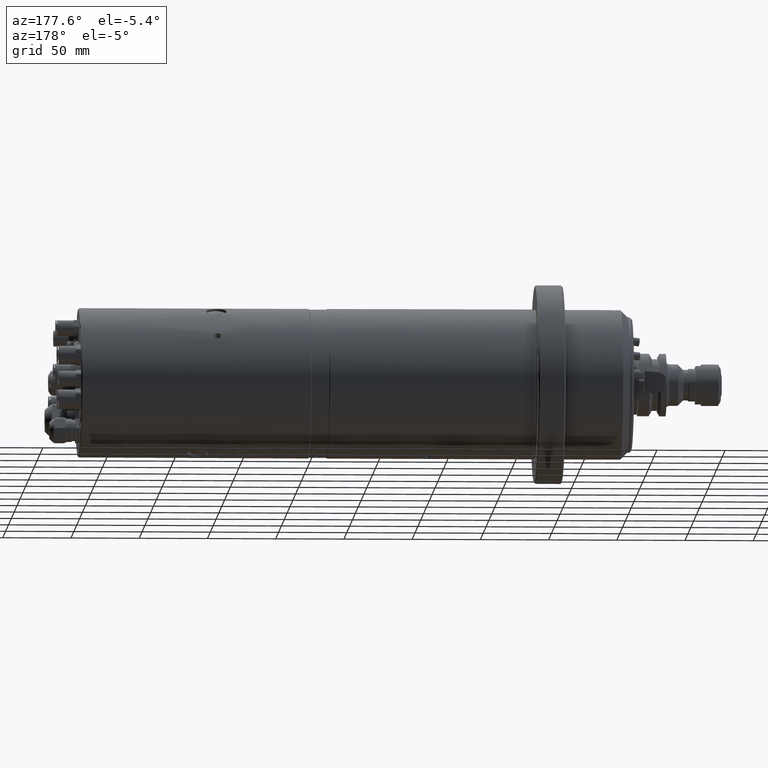
[diagram: clean part render]
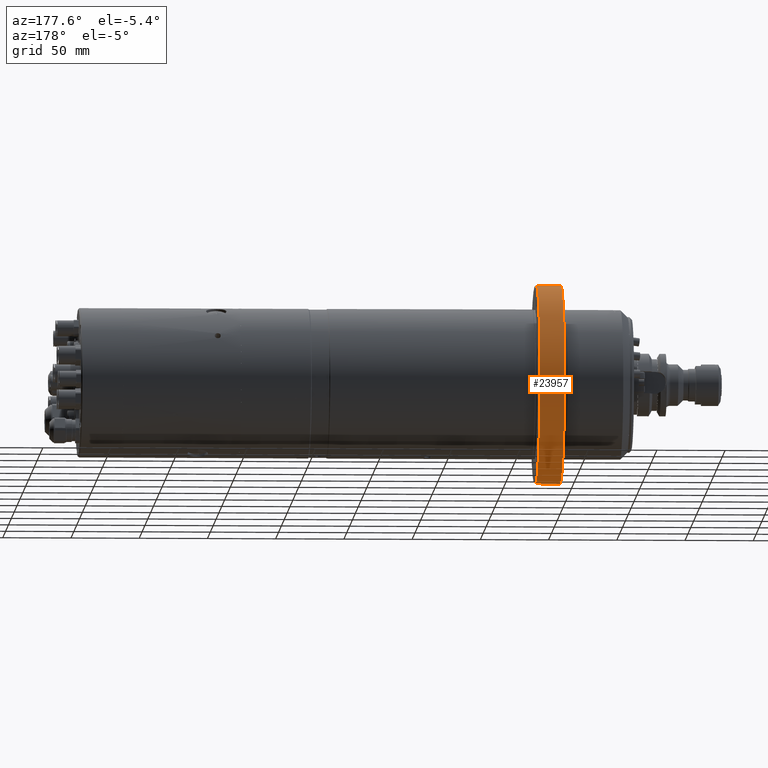
[diagram: same view with one face highlighted and labeled with its STEP entity id]
A machine part, auxiliary view. The second image highlights one B-rep face of the part: STEP entity #23957.
In plain terms, the highlighted cylindrical surface (partial cylindrical patch) has radius 73 mm, axis along (-1, -0, -0).
Its self-contained STEP definition (entity closure, byte-faithful):
#6 = DIRECTION ( 'NONE',  ( 1.000000000000000000, 0.0000000000000000000, 0.0000000000000000000 ) ) ;
#46 = DIRECTION ( 'NONE',  ( 0.0000000000000000000, 0.0000000000000000000, -1.000000000000000000 ) ) ;
#110 = DIRECTION ( 'NONE',  ( 0.0000000000000000000, 0.0000000000000000000, 1.000000000000000000 ) ) ;
#127 = DIRECTION ( 'NONE',  ( -1.000000000000000000, -0.0000000000000000000, -0.0000000000000000000 ) ) ;
#149 = CARTESIAN_POINT ( 'NONE',  ( 22.49999999999999300, 9.799320692167519100E-015, -73.00000000000000000 ) ) ;
#370 = DIRECTION ( 'NONE',  ( -1.000000000000000000, -0.0000000000000000000, -0.0000000000000000000 ) ) ;
#476 = CARTESIAN_POINT ( 'NONE',  ( 74.00000000000001400, 8.593990583918423500E-016, 3.988255730903800700E-016 ) ) ;
#513 = DIRECTION ( 'NONE',  ( -1.000000000000000000, -0.0000000000000000000, -0.0000000000000000000 ) ) ;
#2330 = DIRECTION ( 'NONE',  ( -1.000000000000000000, -0.0000000000000000000, -0.0000000000000000000 ) ) ;
#2352 = CARTESIAN_POINT ( 'NONE',  ( 22.49999999999999300, 8.593990583918423500E-016, 3.988255730903800700E-016 ) ) ;
#3190 = DIRECTION ( 'NONE',  ( 0.0000000000000000000, 0.0000000000000000000, 1.000000000000000000 ) ) ;
#5005 = EDGE_LOOP ( 'NONE', ( #25551, #25631, #25482, #25767 ) ) ;
#8901 = VERTEX_POINT ( 'NONE', #13019 ) ;
#8905 = VERTEX_POINT ( 'NONE', #13028 ) ;
#9053 = VERTEX_POINT ( 'NONE', #12409 ) ;
#9084 = VERTEX_POINT ( 'NONE', #12443 ) ;
#12409 = CARTESIAN_POINT ( 'NONE',  ( 55.99999999999993600, 8.593990583918423500E-016, 73.00000000000000000 ) ) ;
#12443 = CARTESIAN_POINT ( 'NONE',  ( 74.00000000000001400, 9.799320692167519100E-015, -73.00000000000000000 ) ) ;
#12914 = AXIS2_PLACEMENT_3D ( 'NONE', #2352, #2330, #3190 ) ;
#13019 = CARTESIAN_POINT ( 'NONE',  ( 74.00000000000001400, 8.593990583918423500E-016, 73.00000000000000000 ) ) ;
#13028 = CARTESIAN_POINT ( 'NONE',  ( 55.99999999999993600, 9.799320692167519100E-015, -73.00000000000000000 ) ) ;
#14551 = VECTOR ( 'NONE', #370, 1000.000000000000000 ) ;
#14557 = LINE ( 'NONE', #30592, #14602 ) ;
#14563 = CIRCLE ( 'NONE', #18693, 73.00000000000000000 ) ;
#14602 = VECTOR ( 'NONE', #127, 1000.000000000000000 ) ;
#14665 = LINE ( 'NONE', #149, #14551 ) ;
#14667 = CIRCLE ( 'NONE', #18694, 73.00000000000000000 ) ;
#18693 = AXIS2_PLACEMENT_3D ( 'NONE', #476, #513, #110 ) ;
#18694 = AXIS2_PLACEMENT_3D ( 'NONE', #30600, #6, #46 ) ;
#23674 = FACE_OUTER_BOUND ( 'NONE', #5005, .T. ) ;
#23676 = CYLINDRICAL_SURFACE ( 'NONE', #12914, 73.00000000000000000 ) ;
#23957 = ADVANCED_FACE ( 'NONE', ( #23674 ), #23676, .T. ) ;
#25482 = ORIENTED_EDGE ( 'NONE', *, *, #28429, .T. ) ;
#25551 = ORIENTED_EDGE ( 'NONE', *, *, #28422, .T. ) ;
#25631 = ORIENTED_EDGE ( 'NONE', *, *, #28428, .T. ) ;
#25767 = ORIENTED_EDGE ( 'NONE', *, *, #28426, .F. ) ;
#28422 = EDGE_CURVE ( 'NONE', #8901, #9084, #14563, .T. ) ;
#28426 = EDGE_CURVE ( 'NONE', #8901, #9053, #14557, .T. ) ;
#28428 = EDGE_CURVE ( 'NONE', #9084, #8905, #14665, .T. ) ;
#28429 = EDGE_CURVE ( 'NONE', #8905, #9053, #14667, .T. ) ;
#30592 = CARTESIAN_POINT ( 'NONE',  ( 22.49999999999999300, 8.593990583918423500E-016, 73.00000000000000000 ) ) ;
#30600 = CARTESIAN_POINT ( 'NONE',  ( 55.99999999999993600, 8.593990583918423500E-016, 3.988255730903800700E-016 ) ) ;